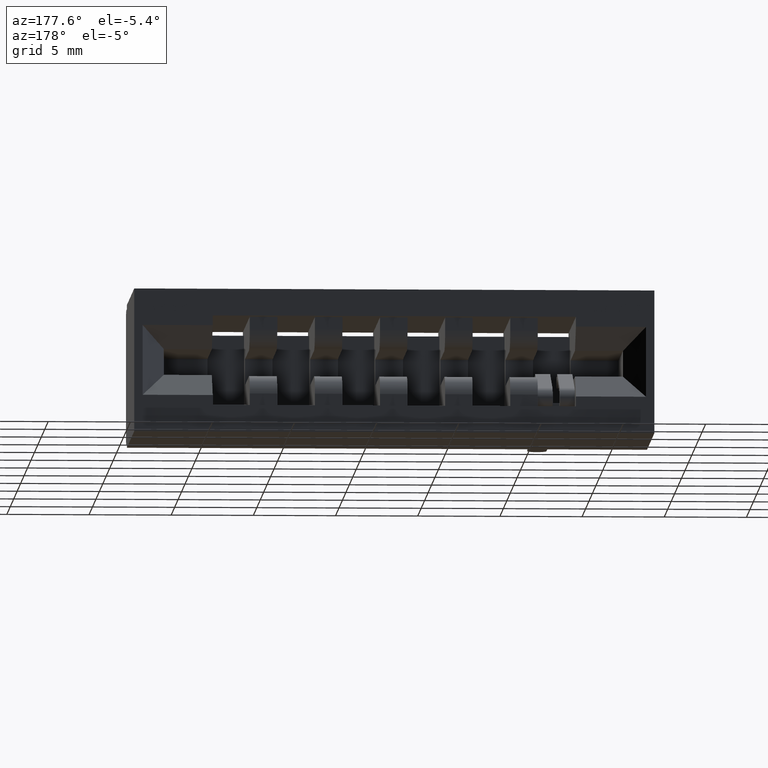
[diagram: clean part render]
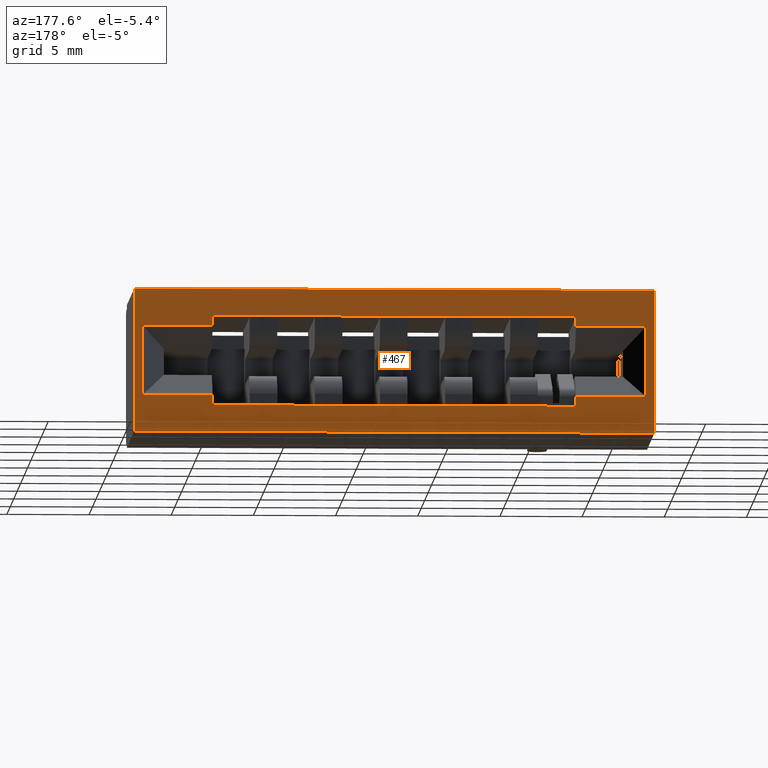
[diagram: same view with one face highlighted and labeled with its STEP entity id]
A machine part, auxiliary view. The second image highlights one B-rep face of the part: STEP entity #467.
In plain terms, the highlighted planar face has unit normal (0, -1, 0).
Its self-contained STEP definition (entity closure, byte-faithful):
#96 = CARTESIAN_POINT ( 'NONE',  ( 0.2979999999999999300, 0.4729999999999999800, -0.3430000000000000300 ) ) ;
#110 = FACE_BOUND ( 'NONE', #712, .T. ) ;
#126 = FACE_OUTER_BOUND ( 'NONE', #1625, .T. ) ;
#198 = DIRECTION ( 'NONE',  ( 0.0000000000000000000, -0.0000000000000000000, -1.000000000000000000 ) ) ;
#393 = VERTEX_POINT ( 'NONE', #7529 ) ;
#433 = CARTESIAN_POINT ( 'NONE',  ( 0.3179999999999991700, 0.4729999999999999800, -0.2555000000000006200 ) ) ;
#466 = VERTEX_POINT ( 'NONE', #1124 ) ;
#467 = ADVANCED_FACE ( 'NONE', ( #110, #126 ), #6156, .F. ) ;
#483 = VECTOR ( 'NONE', #7344, 39.37007874015748100 ) ;
#549 = VERTEX_POINT ( 'NONE', #96 ) ;
#622 = VERTEX_POINT ( 'NONE', #1598 ) ;
#687 = VERTEX_POINT ( 'NONE', #5678 ) ;
#712 = EDGE_LOOP ( 'NONE', ( #6395, #6580, #6619, #6629, #6648, #6663, #6668, #6688, #6725, #6740, #6741, #6747 ) ) ;
#718 = EDGE_CURVE ( 'NONE', #7223, #549, #5498, .T. ) ;
#774 = EDGE_CURVE ( 'NONE', #5235, #466, #7465, .T. ) ;
#848 = LINE ( 'NONE', #3341, #4686 ) ;
#885 = CARTESIAN_POINT ( 'NONE',  ( -3.965836149893293600E-018, 0.4729999999999999800, -0.08749999999999962000 ) ) ;
#1056 = VERTEX_POINT ( 'NONE', #9122 ) ;
#1121 = VERTEX_POINT ( 'NONE', #2765 ) ;
#1124 = CARTESIAN_POINT ( 'NONE',  ( 1.356000000000000500, 0.4729999999999999800, -0.08749999999999959200 ) ) ;
#1200 = EDGE_CURVE ( 'NONE', #1056, #2599, #6307, .T. ) ;
#1281 = VECTOR ( 'NONE', #8983, 39.37007874015748100 ) ;
#1369 = LINE ( 'NONE', #6788, #5248 ) ;
#1384 = DIRECTION ( 'NONE',  ( 0.0000000000000000000, 0.0000000000000000000, 1.000000000000000000 ) ) ;
#1422 = CARTESIAN_POINT ( 'NONE',  ( 1.524000000000001400, 0.4729999999999999800, -0.3430000000000000300 ) ) ;
#1495 = VERTEX_POINT ( 'NONE', #2669 ) ;
#1573 = LINE ( 'NONE', #885, #1281 ) ;
#1598 = CARTESIAN_POINT ( 'NONE',  ( 1.544000000000000700, 0.4729999999999999800, 0.0000000000000000000 ) ) ;
#1625 = EDGE_LOOP ( 'NONE', ( #6755, #6780, #6792, #6807 ) ) ;
#1685 = CARTESIAN_POINT ( 'NONE',  ( 0.4860000000000004300, 0.4729999999999999800, -0.06400000000000001500 ) ) ;
#1835 = VECTOR ( 'NONE', #8807, 39.37007874015748100 ) ;
#1838 = DIRECTION ( 'NONE',  ( 1.000000000000000000, 0.0000000000000000000, 0.0000000000000000000 ) ) ;
#2027 = EDGE_CURVE ( 'NONE', #2535, #687, #1369, .T. ) ;
#2518 = CARTESIAN_POINT ( 'NONE',  ( 1.356000000000000500, 0.4729999999999999800, -0.06399999999999997400 ) ) ;
#2535 = VERTEX_POINT ( 'NONE', #4304 ) ;
#2599 = VERTEX_POINT ( 'NONE', #433 ) ;
#2638 = LINE ( 'NONE', #7253, #6854 ) ;
#2669 = CARTESIAN_POINT ( 'NONE',  ( 0.2979999999999999900, 0.4729999999999999800, 0.0000000000000000000 ) ) ;
#2706 = CARTESIAN_POINT ( 'NONE',  ( 1.524000000000001400, 0.4729999999999999800, -0.08749999999999959200 ) ) ;
#2765 = CARTESIAN_POINT ( 'NONE',  ( 1.356000000000000500, 0.4729999999999999800, -0.2555000000000006200 ) ) ;
#2895 = LINE ( 'NONE', #8531, #6369 ) ;
#3341 = CARTESIAN_POINT ( 'NONE',  ( 0.5760000000000004000, 0.4729999999999999800, -0.06400000000000004300 ) ) ;
#3577 = VERTEX_POINT ( 'NONE', #8275 ) ;
#3741 = VERTEX_POINT ( 'NONE', #7234 ) ;
#3752 = EDGE_CURVE ( 'NONE', #1121, #3577, #8687, .T. ) ;
#3754 = CARTESIAN_POINT ( 'NONE',  ( 0.0000000000000000000, 0.4729999999999999800, -0.3430000000000000300 ) ) ;
#3903 = CARTESIAN_POINT ( 'NONE',  ( 1.544000000000000700, 0.4729999999999999800, -0.3430000000000000300 ) ) ;
#4160 = CARTESIAN_POINT ( 'NONE',  ( 0.0000000000000000000, 0.4729999999999999800, -0.2555000000000006200 ) ) ;
#4304 = CARTESIAN_POINT ( 'NONE',  ( 0.4860000000000004300, 0.4729999999999999800, -0.2790000000000000300 ) ) ;
#4433 = VECTOR ( 'NONE', #1838, 39.37007874015748100 ) ;
#4455 = VERTEX_POINT ( 'NONE', #6475 ) ;
#4566 = EDGE_CURVE ( 'NONE', #1495, #549, #9079, .T. ) ;
#4573 = DIRECTION ( 'NONE',  ( 0.0000000000000000000, 0.0000000000000000000, -1.000000000000000000 ) ) ;
#4583 = EDGE_CURVE ( 'NONE', #622, #7223, #7203, .T. ) ;
#4617 = DIRECTION ( 'NONE',  ( -0.0000000000000000000, -0.0000000000000000000, 1.000000000000000000 ) ) ;
#4686 = VECTOR ( 'NONE', #7545, 39.37007874015748100 ) ;
#4711 = VECTOR ( 'NONE', #8822, 39.37007874015748100 ) ;
#4738 = EDGE_CURVE ( 'NONE', #4455, #3741, #9004, .T. ) ;
#4811 = EDGE_CURVE ( 'NONE', #4455, #1056, #1573, .T. ) ;
#4837 = DIRECTION ( 'NONE',  ( -1.000000000000000000, -0.0000000000000000000, -0.0000000000000000000 ) ) ;
#4844 = VERTEX_POINT ( 'NONE', #2518 ) ;
#5011 = EDGE_CURVE ( 'NONE', #2599, #687, #6239, .T. ) ;
#5116 = CARTESIAN_POINT ( 'NONE',  ( 0.2979999999999999900, 0.4729999999999999800, -2.966802850262209500E-017 ) ) ;
#5235 = VERTEX_POINT ( 'NONE', #2706 ) ;
#5248 = VECTOR ( 'NONE', #6610, 39.37007874015748100 ) ;
#5384 = VECTOR ( 'NONE', #1384, 39.37007874015748100 ) ;
#5490 = CARTESIAN_POINT ( 'NONE',  ( 0.0000000000000000000, 0.4729999999999999800, -0.3430000000000000300 ) ) ;
#5498 = LINE ( 'NONE', #5490, #8227 ) ;
#5519 = EDGE_CURVE ( 'NONE', #3577, #5235, #7063, .T. ) ;
#5520 = VECTOR ( 'NONE', #4573, 39.37007874015748100 ) ;
#5548 = CARTESIAN_POINT ( 'NONE',  ( 0.0000000000000000000, 0.4729999999999999800, -0.2555000000000006200 ) ) ;
#5563 = VECTOR ( 'NONE', #7564, 39.37007874015748100 ) ;
#5678 = CARTESIAN_POINT ( 'NONE',  ( 0.4860000000000004300, 0.4729999999999999800, -0.2555000000000006200 ) ) ;
#5849 = VECTOR ( 'NONE', #4617, 39.37007874015748100 ) ;
#5858 = DIRECTION ( 'NONE',  ( -9.955714262624865200E-017, 0.0000000000000000000, -1.000000000000000000 ) ) ;
#6019 = VECTOR ( 'NONE', #6355, 39.37007874015748100 ) ;
#6156 = PLANE ( 'NONE',  #8157 ) ;
#6239 = LINE ( 'NONE', #4160, #4433 ) ;
#6307 = LINE ( 'NONE', #7885, #4711 ) ;
#6355 = DIRECTION ( 'NONE',  ( -1.000000000000000000, 0.0000000000000000000, -1.552186360036511700E-017 ) ) ;
#6369 = VECTOR ( 'NONE', #8636, 39.37007874015748100 ) ;
#6395 = ORIENTED_EDGE ( 'NONE', *, *, #1200, .T. ) ;
#6464 = LINE ( 'NONE', #8417, #483 ) ;
#6475 = CARTESIAN_POINT ( 'NONE',  ( 0.4860000000000004300, 0.4729999999999999800, -0.08749999999999962000 ) ) ;
#6580 = ORIENTED_EDGE ( 'NONE', *, *, #5011, .T. ) ;
#6610 = DIRECTION ( 'NONE',  ( -0.0000000000000000000, -0.0000000000000000000, 1.000000000000000000 ) ) ;
#6619 = ORIENTED_EDGE ( 'NONE', *, *, #2027, .F. ) ;
#6629 = ORIENTED_EDGE ( 'NONE', *, *, #8790, .F. ) ;
#6648 = ORIENTED_EDGE ( 'NONE', *, *, #8754, .F. ) ;
#6663 = ORIENTED_EDGE ( 'NONE', *, *, #3752, .T. ) ;
#6668 = ORIENTED_EDGE ( 'NONE', *, *, #5519, .T. ) ;
#6688 = ORIENTED_EDGE ( 'NONE', *, *, #774, .T. ) ;
#6725 = ORIENTED_EDGE ( 'NONE', *, *, #8830, .F. ) ;
#6740 = ORIENTED_EDGE ( 'NONE', *, *, #8826, .F. ) ;
#6741 = ORIENTED_EDGE ( 'NONE', *, *, #4738, .F. ) ;
#6747 = ORIENTED_EDGE ( 'NONE', *, *, #4811, .T. ) ;
#6755 = ORIENTED_EDGE ( 'NONE', *, *, #4583, .T. ) ;
#6780 = ORIENTED_EDGE ( 'NONE', *, *, #718, .T. ) ;
#6788 = CARTESIAN_POINT ( 'NONE',  ( 0.4860000000000004300, 0.4729999999999999800, -0.06400000000000001500 ) ) ;
#6792 = ORIENTED_EDGE ( 'NONE', *, *, #4566, .F. ) ;
#6807 = ORIENTED_EDGE ( 'NONE', *, *, #8977, .T. ) ;
#6849 = CARTESIAN_POINT ( 'NONE',  ( -3.965836149893292800E-018, 0.4729999999999999800, -0.08749999999999964800 ) ) ;
#6854 = VECTOR ( 'NONE', #8860, 39.37007874015748100 ) ;
#7063 = LINE ( 'NONE', #1422, #5384 ) ;
#7203 = LINE ( 'NONE', #8141, #5520 ) ;
#7223 = VERTEX_POINT ( 'NONE', #3903 ) ;
#7234 = CARTESIAN_POINT ( 'NONE',  ( 0.4860000000000004300, 0.4729999999999999800, -0.06400000000000001500 ) ) ;
#7253 = CARTESIAN_POINT ( 'NONE',  ( 0.0000000000000000000, 0.4729999999999999800, 0.0000000000000000000 ) ) ;
#7344 = DIRECTION ( 'NONE',  ( 0.0000000000000000000, 0.0000000000000000000, -1.000000000000000000 ) ) ;
#7397 = VECTOR ( 'NONE', #5858, 39.37007874015748100 ) ;
#7465 = LINE ( 'NONE', #6849, #6019 ) ;
#7529 = CARTESIAN_POINT ( 'NONE',  ( 1.356000000000000500, 0.4729999999999999800, -0.2790000000000000300 ) ) ;
#7545 = DIRECTION ( 'NONE',  ( 1.000000000000000000, -0.0000000000000000000, -1.897116662266849500E-016 ) ) ;
#7564 = DIRECTION ( 'NONE',  ( -1.000000000000000000, 0.0000000000000000000, 0.0000000000000000000 ) ) ;
#7885 = CARTESIAN_POINT ( 'NONE',  ( 0.3179999999999991700, 0.4729999999999999800, -0.3430000000000000300 ) ) ;
#8141 = CARTESIAN_POINT ( 'NONE',  ( 1.544000000000000700, 0.4729999999999999800, 0.0000000000000000000 ) ) ;
#8157 = AXIS2_PLACEMENT_3D ( 'NONE', #3754, #8282, #198 ) ;
#8227 = VECTOR ( 'NONE', #4837, 39.37007874015748100 ) ;
#8275 = CARTESIAN_POINT ( 'NONE',  ( 1.524000000000001400, 0.4729999999999999800, -0.2555000000000006200 ) ) ;
#8282 = DIRECTION ( 'NONE',  ( 0.0000000000000000000, -1.000000000000000000, 0.0000000000000000000 ) ) ;
#8417 = CARTESIAN_POINT ( 'NONE',  ( 1.356000000000000500, 0.4729999999999999800, -0.06399999999999997400 ) ) ;
#8531 = CARTESIAN_POINT ( 'NONE',  ( 1.356000000000000500, 0.4729999999999999800, -0.06399999999999997400 ) ) ;
#8636 = DIRECTION ( 'NONE',  ( 0.0000000000000000000, 0.0000000000000000000, -1.000000000000000000 ) ) ;
#8663 = CARTESIAN_POINT ( 'NONE',  ( 0.5760000000000004000, 0.4729999999999999800, -0.2790000000000000300 ) ) ;
#8687 = LINE ( 'NONE', #5548, #1835 ) ;
#8754 = EDGE_CURVE ( 'NONE', #1121, #393, #2895, .T. ) ;
#8785 = LINE ( 'NONE', #8663, #5563 ) ;
#8790 = EDGE_CURVE ( 'NONE', #393, #2535, #8785, .T. ) ;
#8807 = DIRECTION ( 'NONE',  ( 1.000000000000000000, 0.0000000000000000000, 0.0000000000000000000 ) ) ;
#8822 = DIRECTION ( 'NONE',  ( 0.0000000000000000000, 0.0000000000000000000, -1.000000000000000000 ) ) ;
#8826 = EDGE_CURVE ( 'NONE', #3741, #4844, #848, .T. ) ;
#8830 = EDGE_CURVE ( 'NONE', #4844, #466, #6464, .T. ) ;
#8860 = DIRECTION ( 'NONE',  ( 1.000000000000000000, 0.0000000000000000000, 0.0000000000000000000 ) ) ;
#8977 = EDGE_CURVE ( 'NONE', #1495, #622, #2638, .T. ) ;
#8983 = DIRECTION ( 'NONE',  ( -1.000000000000000000, 0.0000000000000000000, -1.552186360036511700E-017 ) ) ;
#9004 = LINE ( 'NONE', #1685, #5849 ) ;
#9079 = LINE ( 'NONE', #5116, #7397 ) ;
#9122 = CARTESIAN_POINT ( 'NONE',  ( 0.3179999999999991700, 0.4729999999999999800, -0.08749999999999962000 ) ) ;